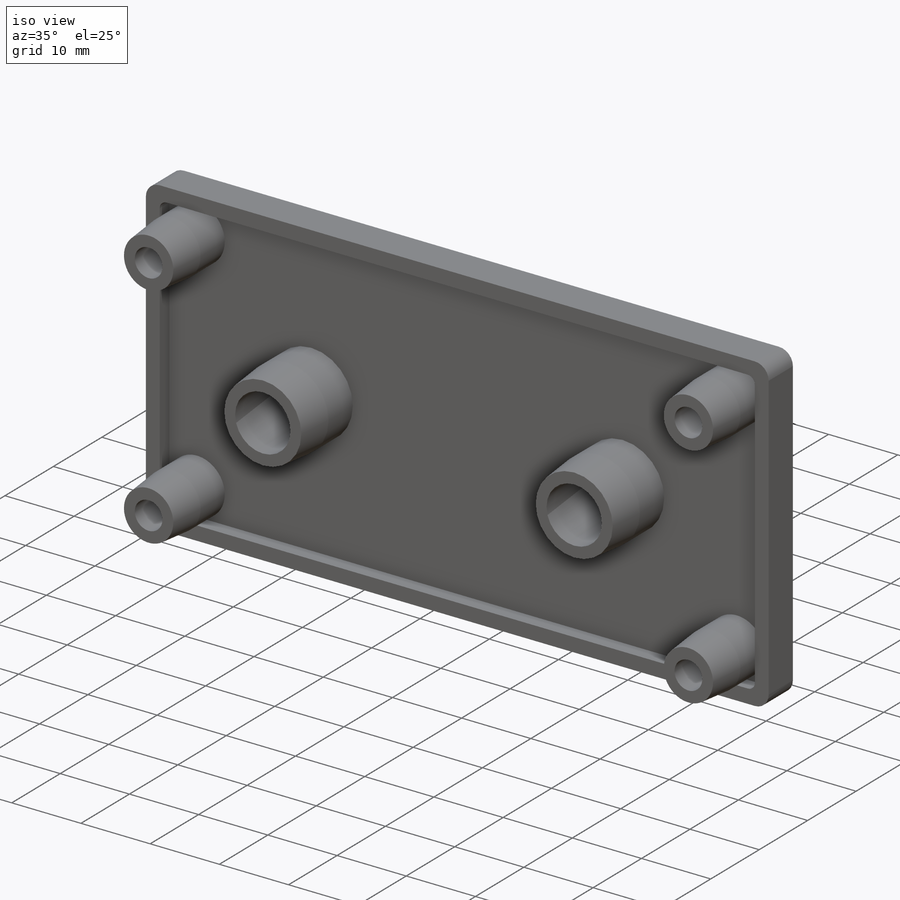
[diagram: iso view]
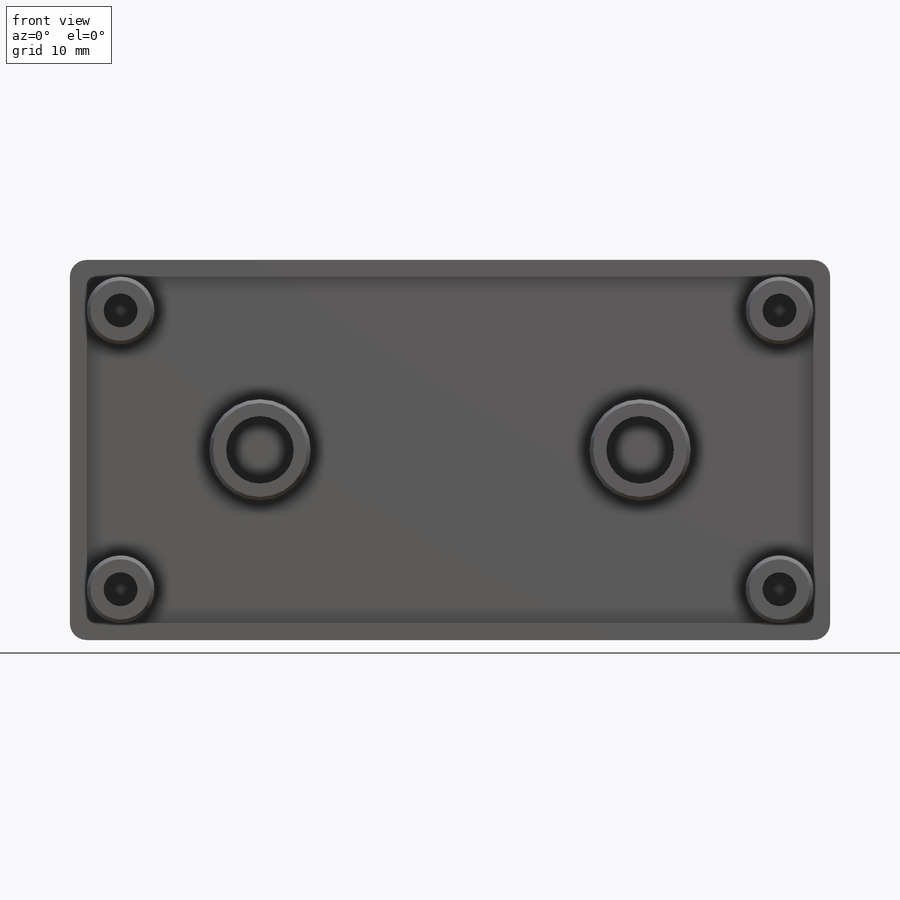
[diagram: front view]
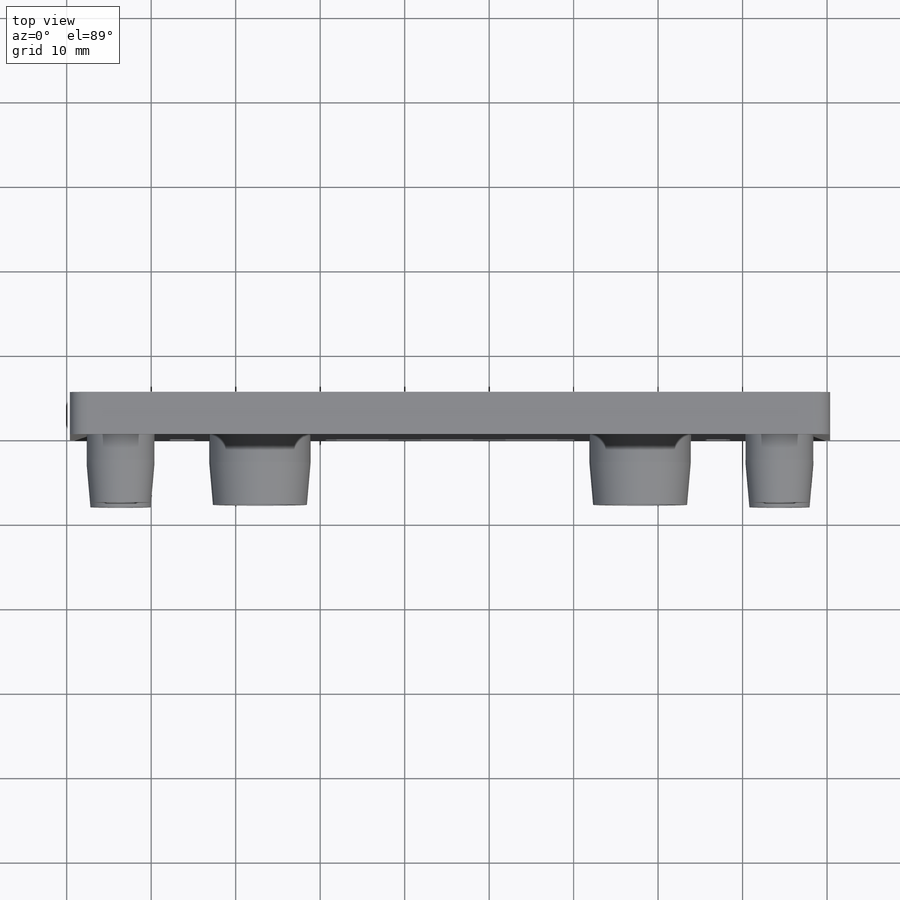
[diagram: top view]
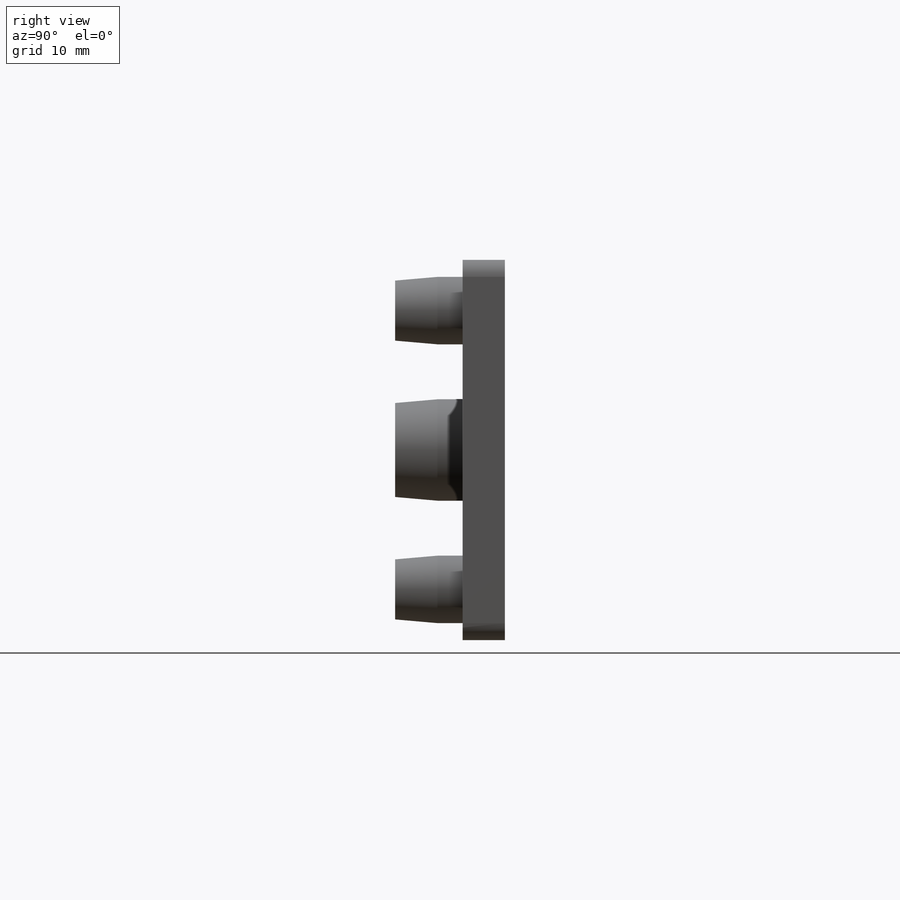
[diagram: right view]
SOLIDWORKS PART (.sldprt)
format: sldprt  version: not decoded by parser v0  size: 425,472 bytes
history: native  units: mm
features: sketch x4, plane x3, extrude x3, chamfer x2, pattern_linear x2, material x1, cut_extrude x1 (+12 scaffold rows collapsed)
feature tree (28):
  scaffold x12  (default folders/planes/origin — collapsed)
  material  "材质 <未指定>"
  plane  "前视基准面"
  plane  "上视基准面"
  plane  "右视基准面"
  sketch  "草图1"
  extrude  "拉伸1"  Depth=5mm
  cut_extrude  "切除-拉伸2"  [1 undecoded]
  sketch  "草图1<4>"  dims[D1=2.0mm]
  sketch  "草图2"  dims[D1=6.0mm D2=6.0mm]
  extrude  "拉伸2"  Depth=10mm
  chamfer  "倒角1"  Distance=5mm Angle=5deg
  pattern_linear  "阵列(线性)3"  Count1=2 Count2=2 Spacing1=78mm Spacing2=33mm
  sketch  "草图3"  dims[D1=22.5mm D2=22.5mm]
  extrude  "拉伸3"  Depth=10mm
  chamfer  "倒角2"  Distance=5mm Angle=5deg
  pattern_linear  "阵列(线性)4"  Count1=2 Count2=1 Spacing1=45mm Spacing2=33mm
decode coverage: 10 of 12 modeling features carry decoded parameters
note: 1 parameter value undecoded
note: suppression state not decoded; provenance and decode notes live in map.json
